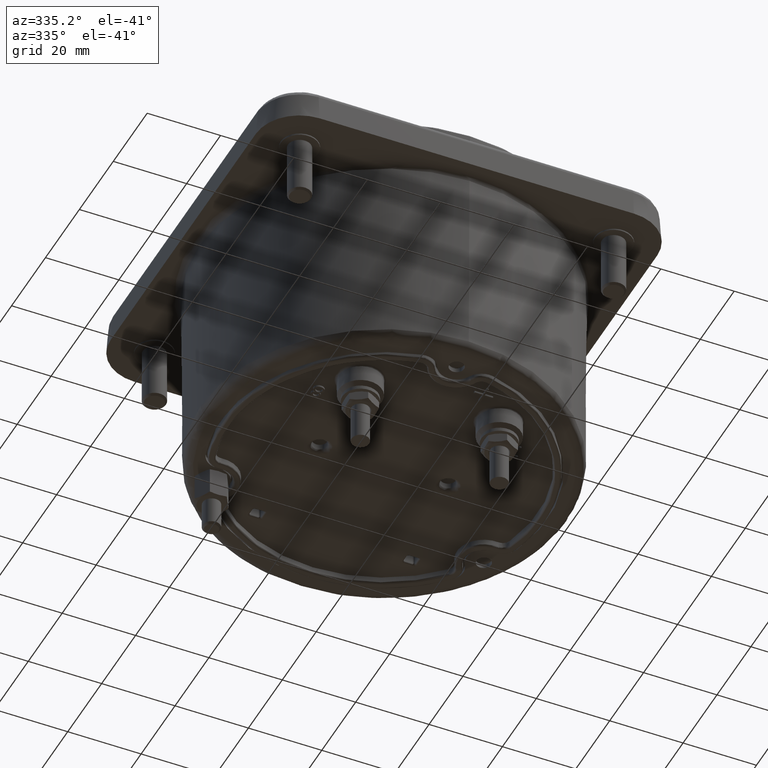
[diagram: clean part render]
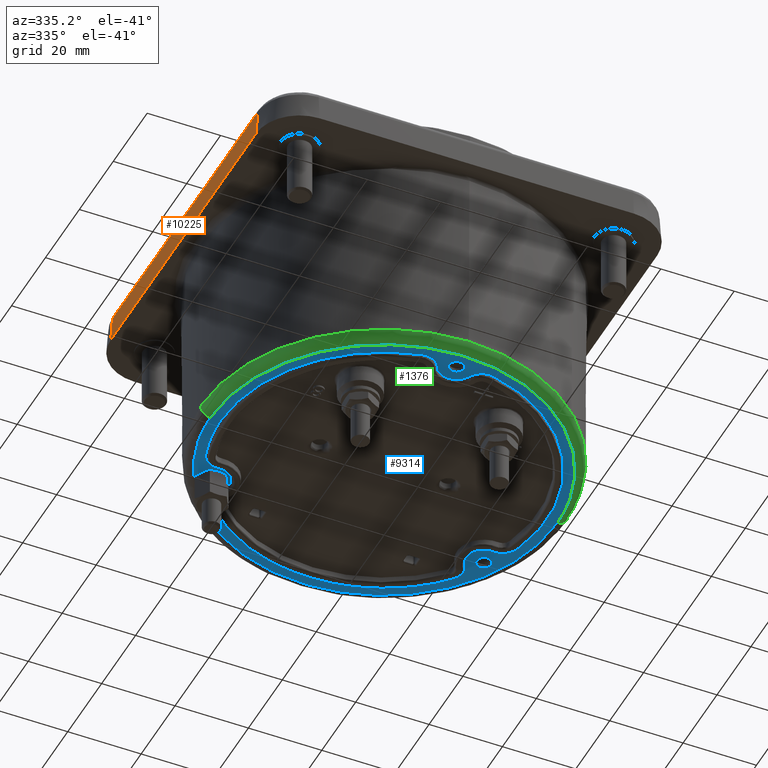
[diagram: same view with three faces highlighted in distinct colors, each labeled with its STEP entity id]
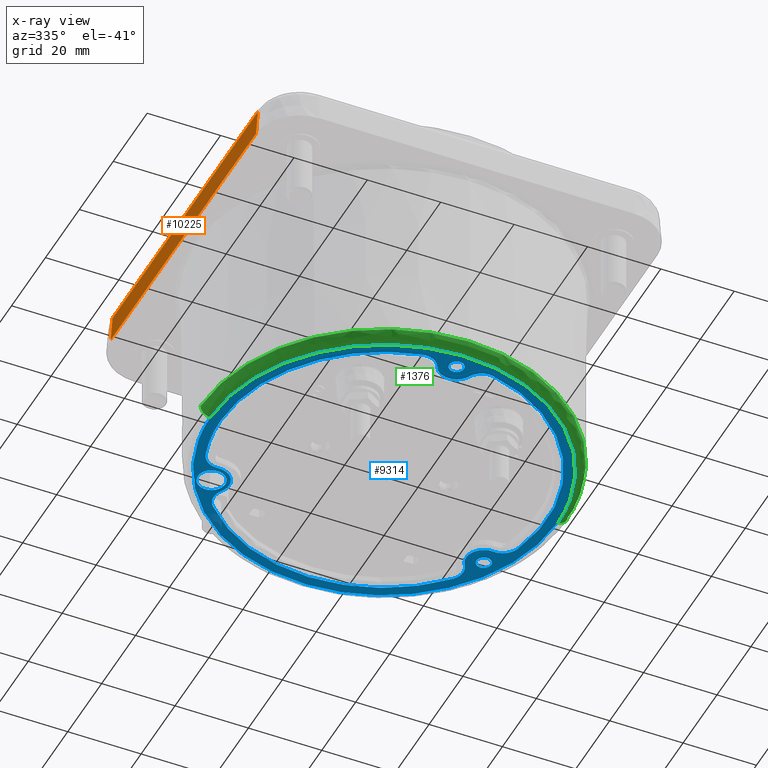
[diagram: x-ray of the same camera — body ghosted, the three highlighted faces saturated]
A machine part, auxiliary view with three faces highlighted in distinct colors.
The next image is the same camera in x-ray (body ghosted, the three faces saturated) — at least one of them is partly hidden behind the body in this view.
Their STEP definitions:

[orange] entity #10225 — the highlighted planar face has unit normal (-0.9976, -0, 0.0698).
#1571 = CARTESIAN_POINT ( 'NONE',  ( -2.133475103427696862, 1.687007872627659388, 2.357098934979472649 ) ) ;
#1637 = CARTESIAN_POINT ( 'NONE',  ( -2.153543308184228344, 1.687007872614602277, 2.070110236220472189 ) ) ;
#1913 = CARTESIAN_POINT ( 'NONE',  ( -2.133475100921637946, -2.153543308487763763, 2.357098934919358513 ) ) ;
#3678 = LINE ( 'NONE', #1913, #15981 ) ;
#4688 = DIRECTION ( 'NONE',  ( 0.06975647374412533019, 0.000000000000000000, 0.9975640502598244197 ) ) ;
#4998 = DIRECTION ( 'NONE',  ( 0.000000000000000000, 1.000000000000000000, 0.000000000000000000 ) ) ;
#5026 = DIRECTION ( 'NONE',  ( 0.06975647366454637566, 4.538471703306039120E-11, 0.9975640502653888575 ) ) ;
#5438 = CARTESIAN_POINT ( 'NONE',  ( -2.153543307086614345, 1.687007872766370209, 2.070110236220472189 ) ) ;
#5782 = AXIS2_PLACEMENT_3D ( 'NONE', #19234, #14646, #4688 ) ;
#6797 = LINE ( 'NONE', #15428, #8531 ) ;
#6916 = EDGE_CURVE ( 'NONE', #7320, #16397, #16934, .T. ) ;
#7277 = DIRECTION ( 'NONE',  ( -6.474599080580000220E-10, 1.000000000000000000, 4.527480723173429813E-11 ) ) ;
#7320 = VERTEX_POINT ( 'NONE', #5438 ) ;
#8531 = VECTOR ( 'NONE', #11742, 39.37007874015748854 ) ;
#8926 = EDGE_CURVE ( 'NONE', #17065, #11542, #6797, .T. ) ;
#9288 = PLANE ( 'NONE',  #5782 ) ;
#9857 = EDGE_LOOP ( 'NONE', ( #19350, #12769, #14043, #12941 ) ) ;
#10225 = ADVANCED_FACE ( 'NONE', ( #17903 ), #9288, .T. ) ;
#11542 = VERTEX_POINT ( 'NONE', #15567 ) ;
#11742 = DIRECTION ( 'NONE',  ( 0.06975647374412530244, 0.000000000000000000, 0.9975640502598241977 ) ) ;
#12769 = ORIENTED_EDGE ( 'NONE', *, *, #20242, .F. ) ;
#12853 = VECTOR ( 'NONE', #5026, 39.37007874015748854 ) ;
#12941 = ORIENTED_EDGE ( 'NONE', *, *, #16252, .T. ) ;
#13434 = LINE ( 'NONE', #19989, #16131 ) ;
#14043 = ORIENTED_EDGE ( 'NONE', *, *, #8926, .T. ) ;
#14646 = DIRECTION ( 'NONE',  ( -0.9975640502598243087, -6.490409391651221763E-10, 0.06975647374412533019 ) ) ;
#15428 = CARTESIAN_POINT ( 'NONE',  ( -2.153543305987531298, -1.687007875416897562, 2.070110236241590407 ) ) ;
#15567 = CARTESIAN_POINT ( 'NONE',  ( -2.133475101229425075, -1.687007875410368118, 2.357098934940882184 ) ) ;
#15981 = VECTOR ( 'NONE', #7277, 39.37007874015748143 ) ;
#16131 = VECTOR ( 'NONE', #4998, 39.37007874015748143 ) ;
#16252 = EDGE_CURVE ( 'NONE', #11542, #16397, #3678, .T. ) ;
#16397 = VERTEX_POINT ( 'NONE', #1571 ) ;
#16934 = LINE ( 'NONE', #1637, #12853 ) ;
#17065 = VERTEX_POINT ( 'NONE', #20672 ) ;
#17903 = FACE_OUTER_BOUND ( 'NONE', #9857, .T. ) ;
#19234 = CARTESIAN_POINT ( 'NONE',  ( -2.153543305685468479, -2.153543308487763763, 2.070110236220472189 ) ) ;
#19350 = ORIENTED_EDGE ( 'NONE', *, *, #6916, .F. ) ;
#19989 = CARTESIAN_POINT ( 'NONE',  ( -2.153543305989007894, -3.543307086614173151, 2.070110236220472189 ) ) ;
#20242 = EDGE_CURVE ( 'NONE', #17065, #7320, #13434, .T. ) ;
#20672 = CARTESIAN_POINT ( 'NONE',  ( -2.153543305989007894, -1.687007875265127854, 2.070110236220472189 ) ) ;

[blue] entity #9314 — the highlighted planar face has unit normal (0, 0, -1).
#15 = CARTESIAN_POINT ( 'NONE',  ( -1.305539611769651609, 0.9509596348511083486, -0.1550551181102393650 ) ) ;
#112 = VERTEX_POINT ( 'NONE', #9804 ) ;
#173 = AXIS2_PLACEMENT_3D ( 'NONE', #21197, #14639, #14738 ) ;
#193 = CIRCLE ( 'NONE', #5817, 0.07874015748031502893 ) ;
#525 = EDGE_CURVE ( 'NONE', #5381, #15332, #13678, .T. ) ;
#599 = CARTESIAN_POINT ( 'NONE',  ( 1.460991674733208789, 0.8435039379584450270, -0.1550551181102393650 ) ) ;
#726 = VERTEX_POINT ( 'NONE', #18587 ) ;
#727 = EDGE_CURVE ( 'NONE', #8705, #6895, #5017, .T. ) ;
#807 = EDGE_CURVE ( 'NONE', #1234, #15644, #18268, .T. ) ;
#843 = FACE_BOUND ( 'NONE', #1360, .T. ) ;
#884 = ORIENTED_EDGE ( 'NONE', *, *, #5634, .T. ) ;
#962 = AXIS2_PLACEMENT_3D ( 'NONE', #17773, #7318, #18675 ) ;
#966 = ORIENTED_EDGE ( 'NONE', *, *, #13560, .F. ) ;
#979 = DIRECTION ( 'NONE',  ( 0.000000000000000000, 0.000000000000000000, 1.000000000000000000 ) ) ;
#1010 = EDGE_CURVE ( 'NONE', #726, #19868, #2912, .T. ) ;
#1068 = CARTESIAN_POINT ( 'NONE',  ( -1.460991675830823011, 0.9899121414463110114, -0.1550551181097619968 ) ) ;
#1087 = DIRECTION ( 'NONE',  ( -0.000000000000000000, -0.000000000000000000, 1.000000000000000000 ) ) ;
#1103 = CIRCLE ( 'NONE', #3203, 1.751968503937007871 ) ;
#1213 = EDGE_LOOP ( 'NONE', ( #13843, #966 ) ) ;
#1234 = VERTEX_POINT ( 'NONE', #20446 ) ;
#1322 = ORIENTED_EDGE ( 'NONE', *, *, #15828, .T. ) ;
#1360 = EDGE_LOOP ( 'NONE', ( #16661, #8137, #12038, #9771, #16013, #9324, #20114, #5182, #884, #21263, #8694, #12460, #2274, #4721, #8532 ) ) ;
#1362 = CARTESIAN_POINT ( 'NONE',  ( 4.755600987370747928E-15, 2.237929876409763545E-15, -0.1550551181102393650 ) ) ;
#1468 = CIRCLE ( 'NONE', #10576, 1.751968503937007871 ) ;
#1671 = EDGE_CURVE ( 'NONE', #20693, #15475, #13727, .T. ) ;
#1677 = CIRCLE ( 'NONE', #11477, 0.1464082053889998736 ) ;
#1904 = CIRCLE ( 'NONE', #14164, 0.1889763779527558474 ) ;
#1982 = VERTEX_POINT ( 'NONE', #17822 ) ;
#2006 = DIRECTION ( 'NONE',  ( -1.000000000000000000, 0.000000000000000000, 0.000000000000000000 ) ) ;
#2200 = DIRECTION ( 'NONE',  ( 0.000000000000000000, 0.000000000000000000, 1.000000000000000000 ) ) ;
#2221 = DIRECTION ( 'NONE',  ( 0.000000000000000000, 0.000000000000000000, -1.000000000000000000 ) ) ;
#2274 = ORIENTED_EDGE ( 'NONE', *, *, #5528, .T. ) ;
#2276 = AXIS2_PLACEMENT_3D ( 'NONE', #19621, #2768, #21148 ) ;
#2547 = AXIS2_PLACEMENT_3D ( 'NONE', #1362, #21379, #16452 ) ;
#2768 = DIRECTION ( 'NONE',  ( -0.000000000000000000, -0.000000000000000000, 1.000000000000000000 ) ) ;
#2829 = CARTESIAN_POINT ( 'NONE',  ( 1.861874424311921183, 3.723748854680767995, -0.1550551181102393650 ) ) ;
#2912 = CIRCLE ( 'NONE', #11319, 0.1889763779527558474 ) ;
#3024 = CARTESIAN_POINT ( 'NONE',  ( 1.382251517252893747, 0.8435039379584450270, -0.1550551181102393650 ) ) ;
#3203 = AXIS2_PLACEMENT_3D ( 'NONE', #4438, #10892, #4215 ) ;
#3213 = DIRECTION ( 'NONE',  ( -0.000000000000000000, -0.000000000000000000, 1.000000000000000000 ) ) ;
#3281 = CIRCLE ( 'NONE', #20762, 0.1889763779527559029 ) ;
#3717 = EDGE_LOOP ( 'NONE', ( #10837, #17211 ) ) ;
#3743 = CIRCLE ( 'NONE', #14918, 0.07874015748031495954 ) ;
#3938 = FACE_BOUND ( 'NONE', #17574, .T. ) ;
#3970 = VERTEX_POINT ( 'NONE', #9087 ) ;
#4019 = CARTESIAN_POINT ( 'NONE',  ( -0.1707853958698066776, -1.606110286864942838, -0.1550551181102393650 ) ) ;
#4215 = DIRECTION ( 'NONE',  ( -1.000000000000000000, -8.881784197001252323E-16, 0.000000000000000000 ) ) ;
#4255 = PLANE ( 'NONE',  #20416 ) ;
#4365 = CARTESIAN_POINT ( 'NONE',  ( -1.460991675830823011, 0.6970957306683112087, -0.1550551181097619968 ) ) ;
#4438 = CARTESIAN_POINT ( 'NONE',  ( 4.755600987370747928E-15, 2.237929876409763545E-15, -0.1550551181102393650 ) ) ;
#4444 = DIRECTION ( 'NONE',  ( -1.000000000000000000, 0.000000000000000000, 0.000000000000000000 ) ) ;
#4522 = ORIENTED_EDGE ( 'NONE', *, *, #16445, .T. ) ;
#4625 = DIRECTION ( 'NONE',  ( 0.000000000000000000, 1.000000000000000000, 0.000000000000000000 ) ) ;
#4721 = ORIENTED_EDGE ( 'NONE', *, *, #1671, .T. ) ;
#4736 = ORIENTED_EDGE ( 'NONE', *, *, #19992, .T. ) ;
#5017 =( BOUNDED_CURVE ( )  B_SPLINE_CURVE ( 3, ( #18812, #8883, #8766, #13583 ),
 .UNSPECIFIED., .F., .F. ) 
 B_SPLINE_CURVE_WITH_KNOTS ( ( 4, 4 ),
 ( 0.000000000000000000, 0.5000000000000000000 ),
 .UNSPECIFIED. ) 
 CURVE ( )  GEOMETRIC_REPRESENTATION_ITEM ( )  RATIONAL_B_SPLINE_CURVE ( ( 1.000000000000000000, 0.3333333333333339810, 0.3333333333333339810, 1.000000000000000000 ) ) 
 REPRESENTATION_ITEM ( '' )  );
#5064 = DIRECTION ( 'NONE',  ( -1.000000000000000000, 0.000000000000000000, 0.000000000000000000 ) ) ;
#5182 = ORIENTED_EDGE ( 'NONE', *, *, #807, .T. ) ;
#5259 = CARTESIAN_POINT ( 'NONE',  ( 1.539731832213523832, 0.8435039379584450270, -0.1550551181102393650 ) ) ;
#5381 = VERTEX_POINT ( 'NONE', #5259 ) ;
#5457 = FACE_BOUND ( 'NONE', #3717, .T. ) ;
#5528 = EDGE_CURVE ( 'NONE', #11664, #20693, #13367, .T. ) ;
#5634 = EDGE_CURVE ( 'NONE', #15644, #20844, #21593, .T. ) ;
#5817 = AXIS2_PLACEMENT_3D ( 'NONE', #7948, #14710, #4444 ) ;
#5853 = CARTESIAN_POINT ( 'NONE',  ( -1.672009979378200617, 0.5232363401437007955, -0.1550551181102393650 ) ) ;
#5860 = EDGE_CURVE ( 'NONE', #17819, #3970, #8673, .T. ) ;
#6073 = DIRECTION ( 'NONE',  ( 0.000000000000000000, 0.000000000000000000, 1.000000000000000000 ) ) ;
#6148 = CARTESIAN_POINT ( 'NONE',  ( -1.460991675830823011, 0.8435039360573111100, -0.1550551181097619968 ) ) ;
#6320 = DIRECTION ( 'NONE',  ( -0.000000000000000000, -0.000000000000000000, 1.000000000000000000 ) ) ;
#6361 = AXIS2_PLACEMENT_3D ( 'NONE', #6148, #14684, #4625 ) ;
#6509 = CIRCLE ( 'NONE', #173, 0.1889763779527558474 ) ;
#6701 = CIRCLE ( 'NONE', #6361, 0.1464082053889998736 ) ;
#6710 = AXIS2_PLACEMENT_3D ( 'NONE', #7339, #2200, #19160 ) ;
#6895 = VERTEX_POINT ( 'NONE', #15190 ) ;
#7209 = EDGE_CURVE ( 'NONE', #20844, #1982, #1468, .T. ) ;
#7318 = DIRECTION ( 'NONE',  ( 0.000000000000000000, 0.000000000000000000, 1.000000000000000000 ) ) ;
#7339 = CARTESIAN_POINT ( 'NONE',  ( 0.3415707948219350309, -1.525212699269673289, -0.1550551181102393650 ) ) ;
#7501 = CARTESIAN_POINT ( 'NONE',  ( 1.672009978697338584, 0.5232363423194291707, -0.1550551181102393650 ) ) ;
#7920 = DIRECTION ( 'NONE',  ( 1.000000000000000000, 0.000000000000000000, 0.000000000000000000 ) ) ;
#7948 = CARTESIAN_POINT ( 'NONE',  ( 1.460991674733208789, 0.8435039379584450270, -0.1550551181102393650 ) ) ;
#8050 = VERTEX_POINT ( 'NONE', #1068 ) ;
#8101 = DIRECTION ( 'NONE',  ( 0.000000000000000000, 0.000000000000000000, -1.000000000000000000 ) ) ;
#8136 = DIRECTION ( 'NONE',  ( 0.000000000000000000, 0.000000000000000000, 1.000000000000000000 ) ) ;
#8137 = ORIENTED_EDGE ( 'NONE', *, *, #11016, .T. ) ;
#8197 = DIRECTION ( 'NONE',  ( -1.000000000000000000, 0.000000000000000000, 0.000000000000000000 ) ) ;
#8532 = ORIENTED_EDGE ( 'NONE', *, *, #11412, .T. ) ;
#8558 = DIRECTION ( 'NONE',  ( 0.000000000000000000, 0.000000000000000000, 1.000000000000000000 ) ) ;
#8565 = VERTEX_POINT ( 'NONE', #15 ) ;
#8673 = CIRCLE ( 'NONE', #962, 0.1889763779527558474 ) ;
#8694 = ORIENTED_EDGE ( 'NONE', *, *, #8985, .T. ) ;
#8705 = VERTEX_POINT ( 'NONE', #19186 ) ;
#8766 = CARTESIAN_POINT ( 'NONE',  ( 1.861874429157462041, -3.723748852257978026, -0.1550551181102393650 ) ) ;
#8864 = DIRECTION ( 'NONE',  ( -1.000000000000000000, 0.000000000000000000, 0.000000000000000000 ) ) ;
#8883 = CARTESIAN_POINT ( 'NONE',  ( -1.861874424311905196, -3.723748854680752007, -0.1550551181102393650 ) ) ;
#8906 = EDGE_CURVE ( 'NONE', #11318, #11664, #9933, .T. ) ;
#8985 = EDGE_CURVE ( 'NONE', #1982, #11318, #3281, .T. ) ;
#9001 = DIRECTION ( 'NONE',  ( 1.000000000000000000, 0.000000000000000000, 0.000000000000000000 ) ) ;
#9087 = CARTESIAN_POINT ( 'NONE',  ( 1.339063924283964591, 1.058415335141480451, -0.1550551181102393650 ) ) ;
#9310 = DIRECTION ( 'NONE',  ( 1.000000000000000000, 0.000000000000000000, 0.000000000000000000 ) ) ;
#9314 = ADVANCED_FACE ( 'NONE', ( #3938, #843, #15630, #5457, #15399 ), #4255, .T. ) ;
#9324 = ORIENTED_EDGE ( 'NONE', *, *, #15180, .T. ) ;
#9771 = ORIENTED_EDGE ( 'NONE', *, *, #12074, .T. ) ;
#9804 = CARTESIAN_POINT ( 'NONE',  ( 0.07874015857793492668, -1.687007874015748143, -0.1550551181102393650 ) ) ;
#9933 = CIRCLE ( 'NONE', #21440, 0.1889763779527559029 ) ;
#10423 = CARTESIAN_POINT ( 'NONE',  ( -0.3415707928372326840, -1.525212699714141529, -0.1550551181102393650 ) ) ;
#10460 = CARTESIAN_POINT ( 'NONE',  ( 1.305539610532208572, 0.9509596365499627391, -0.1550551181102393650 ) ) ;
#10558 = VERTEX_POINT ( 'NONE', #17665 ) ;
#10576 = AXIS2_PLACEMENT_3D ( 'NONE', #17793, #6320, #8197 ) ;
#10837 = ORIENTED_EDGE ( 'NONE', *, *, #14026, .T. ) ;
#10892 = DIRECTION ( 'NONE',  ( -0.000000000000000000, -0.000000000000000000, 1.000000000000000000 ) ) ;
#10986 = CARTESIAN_POINT ( 'NONE',  ( -1.150087547708476432, 1.058415333644909362, -0.1550551181102393650 ) ) ;
#11016 = EDGE_CURVE ( 'NONE', #19868, #17819, #6509, .T. ) ;
#11121 = AXIS2_PLACEMENT_3D ( 'NONE', #14669, #1087, #21011 ) ;
#11168 = DIRECTION ( 'NONE',  ( -1.000000000000000000, 0.000000000000000000, 0.000000000000000000 ) ) ;
#11318 = VERTEX_POINT ( 'NONE', #4019 ) ;
#11319 = AXIS2_PLACEMENT_3D ( 'NONE', #21116, #8101, #11168 ) ;
#11412 = EDGE_CURVE ( 'NONE', #15475, #726, #15239, .T. ) ;
#11477 = AXIS2_PLACEMENT_3D ( 'NONE', #13395, #11760, #20057 ) ;
#11547 = DIRECTION ( 'NONE',  ( 1.000000000000000000, 0.000000000000000000, 0.000000000000000000 ) ) ;
#11664 = VERTEX_POINT ( 'NONE', #14279 ) ;
#11760 = DIRECTION ( 'NONE',  ( -0.000000000000000000, -9.378505498960958704E-17, 1.000000000000000000 ) ) ;
#11797 = EDGE_CURVE ( 'NONE', #112, #13237, #16238, .T. ) ;
#12038 = ORIENTED_EDGE ( 'NONE', *, *, #5860, .T. ) ;
#12067 = DIRECTION ( 'NONE',  ( 0.000000000000000000, 0.000000000000000000, -1.000000000000000000 ) ) ;
#12074 = EDGE_CURVE ( 'NONE', #3970, #10558, #1904, .T. ) ;
#12160 = DIRECTION ( 'NONE',  ( 0.000000000000000000, 0.000000000000000000, -1.000000000000000000 ) ) ;
#12378 = CARTESIAN_POINT ( 'NONE',  ( 1.218533229454543296E-09, -1.872848622775937111, -0.1550551181102393650 ) ) ;
#12460 = ORIENTED_EDGE ( 'NONE', *, *, #8906, .T. ) ;
#13237 = VERTEX_POINT ( 'NONE', #17572 ) ;
#13367 = CIRCLE ( 'NONE', #6710, 0.1889763779527559306 ) ;
#13395 = CARTESIAN_POINT ( 'NONE',  ( -1.460991675830823011, 0.8435039360573111100, -0.1550551181097619968 ) ) ;
#13560 = EDGE_CURVE ( 'NONE', #6895, #8705, #14502, .T. ) ;
#13583 = CARTESIAN_POINT ( 'NONE',  ( 1.861874426734691390, 1.211388297214887600E-09, -0.1550551181102393650 ) ) ;
#13678 = CIRCLE ( 'NONE', #16459, 0.07874015748031502893 ) ;
#13727 = CIRCLE ( 'NONE', #2547, 1.751968503937007871 ) ;
#13753 = AXIS2_PLACEMENT_3D ( 'NONE', #16843, #8558, #20353 ) ;
#13843 = ORIENTED_EDGE ( 'NONE', *, *, #727, .F. ) ;
#14026 = EDGE_CURVE ( 'NONE', #15332, #5381, #193, .T. ) ;
#14164 = AXIS2_PLACEMENT_3D ( 'NONE', #19588, #979, #9310 ) ;
#14248 = DIRECTION ( 'NONE',  ( 0.000000000000000000, 0.000000000000000000, 1.000000000000000000 ) ) ;
#14279 = CARTESIAN_POINT ( 'NONE',  ( 0.1707853979597771799, -1.606110286642708829, -0.1550551181102393650 ) ) ;
#14502 =( BOUNDED_CURVE ( )  B_SPLINE_CURVE ( 3, ( #17806, #2829, #19581, #16187 ),
 .UNSPECIFIED., .F., .T. ) 
 B_SPLINE_CURVE_WITH_KNOTS ( ( 4, 4 ),
 ( 0.5000000000000000000, 1.000000000000000000 ),
 .UNSPECIFIED. ) 
 CURVE ( )  GEOMETRIC_REPRESENTATION_ITEM ( )  RATIONAL_B_SPLINE_CURVE ( ( 1.000000000000000000, 0.3333333333333327597, 0.3333333333333327597, 1.000000000000000000 ) ) 
 REPRESENTATION_ITEM ( '' )  );
#14553 = AXIS2_PLACEMENT_3D ( 'NONE', #10986, #8136, #7920 ) ;
#14639 = DIRECTION ( 'NONE',  ( 0.000000000000000000, 0.000000000000000000, -1.000000000000000000 ) ) ;
#14669 = CARTESIAN_POINT ( 'NONE',  ( 4.755600987370747928E-15, 2.237929876409763545E-15, -0.1550551181102393650 ) ) ;
#14684 = DIRECTION ( 'NONE',  ( -0.000000000000000000, -9.378505498960958704E-17, 1.000000000000000000 ) ) ;
#14710 = DIRECTION ( 'NONE',  ( -0.000000000000000000, -0.000000000000000000, 1.000000000000000000 ) ) ;
#14738 = DIRECTION ( 'NONE',  ( -1.000000000000000000, 0.000000000000000000, 0.000000000000000000 ) ) ;
#14833 = CARTESIAN_POINT ( 'NONE',  ( -1.289140953980533411, 1.186384945773261812, -0.1550551181102393650 ) ) ;
#14918 = AXIS2_PLACEMENT_3D ( 'NONE', #16759, #3213, #5064 ) ;
#15180 = EDGE_CURVE ( 'NONE', #18673, #8565, #16977, .T. ) ;
#15190 = CARTESIAN_POINT ( 'NONE',  ( 1.861874426734691390, 1.211388297214887600E-09, -0.1550551181102393650 ) ) ;
#15239 = CIRCLE ( 'NONE', #18028, 0.1889763779527558474 ) ;
#15332 = VERTEX_POINT ( 'NONE', #3024 ) ;
#15379 = VERTEX_POINT ( 'NONE', #4365 ) ;
#15399 = FACE_OUTER_BOUND ( 'NONE', #1213, .T. ) ;
#15475 = VERTEX_POINT ( 'NONE', #7501 ) ;
#15630 = FACE_BOUND ( 'NONE', #19522, .T. ) ;
#15644 = VERTEX_POINT ( 'NONE', #5853 ) ;
#15689 = CARTESIAN_POINT ( 'NONE',  ( 0.3828690269414630198, -1.709621287594468519, -0.1550551181102393650 ) ) ;
#15828 = EDGE_CURVE ( 'NONE', #13237, #112, #3743, .T. ) ;
#15928 = CARTESIAN_POINT ( 'NONE',  ( 1.272015296780452998, 0.8435039379584450270, -0.1550551181102393650 ) ) ;
#15948 = EDGE_CURVE ( 'NONE', #8565, #1234, #18053, .T. ) ;
#16013 = ORIENTED_EDGE ( 'NONE', *, *, #18890, .T. ) ;
#16033 = ORIENTED_EDGE ( 'NONE', *, *, #11797, .T. ) ;
#16187 = CARTESIAN_POINT ( 'NONE',  ( -1.861874426734680954, -1.211381829296230488E-09, -0.1550551181102393650 ) ) ;
#16238 = CIRCLE ( 'NONE', #2276, 0.07874015748031495954 ) ;
#16314 = CARTESIAN_POINT ( 'NONE',  ( -1.751968503937003208, 2.237929876409763545E-15, -0.1550551181102393650 ) ) ;
#16445 = EDGE_CURVE ( 'NONE', #8050, #15379, #1677, .T. ) ;
#16452 = DIRECTION ( 'NONE',  ( -1.000000000000000000, 8.881784197001252323E-16, 0.000000000000000000 ) ) ;
#16459 = AXIS2_PLACEMENT_3D ( 'NONE', #599, #18988, #20424 ) ;
#16661 = ORIENTED_EDGE ( 'NONE', *, *, #1010, .T. ) ;
#16759 = CARTESIAN_POINT ( 'NONE',  ( 1.097619963314055085E-09, -1.687007874015748143, -0.1550551181102393650 ) ) ;
#16843 = CARTESIAN_POINT ( 'NONE',  ( -1.491658341153133893, 0.4667973641282007757, -0.1550551181102393650 ) ) ;
#16976 = CARTESIAN_POINT ( 'NONE',  ( -1.460991675830823011, 0.8435039360573071132, -0.1550551181102393650 ) ) ;
#16977 = CIRCLE ( 'NONE', #14553, 0.1889763779527558474 ) ;
#17211 = ORIENTED_EDGE ( 'NONE', *, *, #525, .T. ) ;
#17572 = CARTESIAN_POINT ( 'NONE',  ( -0.07874015638269499240, -1.687007874015748143, -0.1550551181102393650 ) ) ;
#17574 = EDGE_LOOP ( 'NONE', ( #4522, #4736 ) ) ;
#17665 = CARTESIAN_POINT ( 'NONE',  ( 1.289140952436744092, 1.186384947450775718, -0.1550551181102393650 ) ) ;
#17713 = AXIS2_PLACEMENT_3D ( 'NONE', #16976, #2221, #2006 ) ;
#17773 = CARTESIAN_POINT ( 'NONE',  ( 1.150087546331208577, 1.058415335141480451, -0.1550551181102393650 ) ) ;
#17793 = CARTESIAN_POINT ( 'NONE',  ( 4.755600987370747928E-15, 2.237929876409763545E-15, -0.1550551181102393650 ) ) ;
#17806 = CARTESIAN_POINT ( 'NONE',  ( 1.861874426734691390, 1.211388297214887600E-09, -0.1550551181102393650 ) ) ;
#17819 = VERTEX_POINT ( 'NONE', #10460 ) ;
#17822 = CARTESIAN_POINT ( 'NONE',  ( -0.3828690247167976235, -1.709621288092679103, -0.1550551181102393650 ) ) ;
#18028 = AXIS2_PLACEMENT_3D ( 'NONE', #19864, #6073, #11547 ) ;
#18053 = CIRCLE ( 'NONE', #17713, 0.1889763779527558474 ) ;
#18268 = CIRCLE ( 'NONE', #13753, 0.1889763779527558474 ) ;
#18279 = CARTESIAN_POINT ( 'NONE',  ( 1.097619963314055085E-09, -1.687007874015748143, -0.1550551181102393650 ) ) ;
#18587 = CARTESIAN_POINT ( 'NONE',  ( 1.476325007639464504, 0.6551506520138444811, -0.1550551181102393650 ) ) ;
#18673 = VERTEX_POINT ( 'NONE', #14833 ) ;
#18675 = DIRECTION ( 'NONE',  ( 1.000000000000000000, 0.000000000000000000, 0.000000000000000000 ) ) ;
#18705 = DIRECTION ( 'NONE',  ( -1.000000000000000000, 0.000000000000000000, 0.000000000000000000 ) ) ;
#18812 = CARTESIAN_POINT ( 'NONE',  ( -1.861874426734680954, -1.211381829296230488E-09, -0.1550551181102393650 ) ) ;
#18890 = EDGE_CURVE ( 'NONE', #10558, #18673, #1103, .T. ) ;
#18988 = DIRECTION ( 'NONE',  ( -0.000000000000000000, -0.000000000000000000, 1.000000000000000000 ) ) ;
#19160 = DIRECTION ( 'NONE',  ( 1.000000000000000000, 0.000000000000000000, 0.000000000000000000 ) ) ;
#19186 = CARTESIAN_POINT ( 'NONE',  ( -1.861874426734680954, -1.211381829296230488E-09, -0.1550551181102393650 ) ) ;
#19522 = EDGE_LOOP ( 'NONE', ( #1322, #16033 ) ) ;
#19581 = CARTESIAN_POINT ( 'NONE',  ( -1.861874429157458932, 3.723748852257994013, -0.1550551181102393650 ) ) ;
#19588 = CARTESIAN_POINT ( 'NONE',  ( 1.150087546331208577, 1.058415335141480451, -0.1550551181102393650 ) ) ;
#19621 = CARTESIAN_POINT ( 'NONE',  ( 1.097619963314055085E-09, -1.687007874015748143, -0.1550551181102393650 ) ) ;
#19864 = CARTESIAN_POINT ( 'NONE',  ( 1.491658340545716444, 0.4667973660692441018, -0.1550551181102393650 ) ) ;
#19868 = VERTEX_POINT ( 'NONE', #15928 ) ;
#19992 = EDGE_CURVE ( 'NONE', #15379, #8050, #6701, .T. ) ;
#20057 = DIRECTION ( 'NONE',  ( 0.000000000000000000, 1.000000000000000000, 0.000000000000000000 ) ) ;
#20114 = ORIENTED_EDGE ( 'NONE', *, *, #15948, .T. ) ;
#20353 = DIRECTION ( 'NONE',  ( 1.000000000000000000, 0.000000000000000000, 0.000000000000000000 ) ) ;
#20416 = AXIS2_PLACEMENT_3D ( 'NONE', #12378, #12160, #8864 ) ;
#20424 = DIRECTION ( 'NONE',  ( -1.000000000000000000, 0.000000000000000000, 0.000000000000000000 ) ) ;
#20446 = CARTESIAN_POINT ( 'NONE',  ( -1.476325008491978341, 0.6551506500927539722, -0.1550551181102393650 ) ) ;
#20693 = VERTEX_POINT ( 'NONE', #15689 ) ;
#20762 = AXIS2_PLACEMENT_3D ( 'NONE', #10423, #14248, #9001 ) ;
#20844 = VERTEX_POINT ( 'NONE', #16314 ) ;
#21011 = DIRECTION ( 'NONE',  ( -1.000000000000000000, 7.993605777301127091E-15, 0.000000000000000000 ) ) ;
#21116 = CARTESIAN_POINT ( 'NONE',  ( 1.460991674733208789, 0.8435039379584450270, -0.1550551181102393650 ) ) ;
#21148 = DIRECTION ( 'NONE',  ( -1.000000000000000000, 0.000000000000000000, 0.000000000000000000 ) ) ;
#21197 = CARTESIAN_POINT ( 'NONE',  ( 1.460991674733208789, 0.8435039379584450270, -0.1550551181102393650 ) ) ;
#21263 = ORIENTED_EDGE ( 'NONE', *, *, #7209, .T. ) ;
#21379 = DIRECTION ( 'NONE',  ( -0.000000000000000000, -0.000000000000000000, 1.000000000000000000 ) ) ;
#21440 = AXIS2_PLACEMENT_3D ( 'NONE', #18279, #12067, #18705 ) ;
#21593 = CIRCLE ( 'NONE', #11121, 1.751968503937007871 ) ;

[green] entity #1376 — the highlighted face is a freeform B-spline surface patch.
#257 = DIRECTION ( 'NONE',  ( -6.506283845020279635E-10, 1.000000000000000000, 0.000000000000000000 ) ) ;
#562 = AXIS2_PLACEMENT_3D ( 'NONE', #4558, #11228, #14824 ) ;
#727 = EDGE_CURVE ( 'NONE', #8705, #6895, #5017, .T. ) ;
#997 = EDGE_CURVE ( 'NONE', #8747, #5601, #6733, .T. ) ;
#1166 = CARTESIAN_POINT ( 'NONE',  ( 1.968925491345131951, -3.937850976285074189, -0.04877558519270733944 ) ) ;
#1189 = DIRECTION ( 'NONE',  ( 1.000000000000000000, 6.506283845020279635E-10, 4.301193127181230591E-15 ) ) ;
#1276 = CARTESIAN_POINT ( 'NONE',  ( 1.924226064727868390, 1.251958569490190107E-09, -0.1550551181102389209 ) ) ;
#1309 = CARTESIAN_POINT ( 'NONE',  ( 4.780733988958603375E-15, -1.968925488800163270, -0.04877558519283117788 ) ) ;
#1376 = ADVANCED_FACE ( 'NONE', ( #13117 ), #4338, .T. ) ;
#1493 = CARTESIAN_POINT ( 'NONE',  ( 1.861874426734691612, 1.211390816355760710E-09, -0.1550551181102393650 ) ) ;
#2453 = ORIENTED_EDGE ( 'NONE', *, *, #16123, .T. ) ;
#4338 =( BOUNDED_SURFACE ( )  B_SPLINE_SURFACE ( 3, 3, ( 
 ( #1493, #17785, #21091, #6097 ),
 ( #1276, #21516, #12794, #4790 ),
 ( #7976, #11144, #19447, #21296 ),
 ( #6531, #1166, #13221, #19886 ) ),
 .UNSPECIFIED., .F., .F., .F. ) 
 B_SPLINE_SURFACE_WITH_KNOTS ( ( 4, 4 ),
 ( 4, 4 ),
 ( 0.000000000000000000, 1.000000000000000000 ),
 ( 0.000000000000000000, 1.000000000000000000 ),
 .UNSPECIFIED. ) 
 GEOMETRIC_REPRESENTATION_ITEM ( )  RATIONAL_B_SPLINE_SURFACE ( (
 ( 1.000000000000000000, 0.3333333333333318715, 0.3333333333333318715, 1.000000000000000000),
 ( 0.8064396365959375368, 0.2688132121986446799, 0.2688132121986446799, 0.8064396365959375368),
 ( 0.8064396365959375368, 0.2688132121986446799, 0.2688132121986446799, 0.8064396365959375368),
 ( 1.000000000000000000, 0.3333333333333318715, 0.3333333333333318715, 1.000000000000000000) ) ) 
 REPRESENTATION_ITEM ( '' )  SURFACE ( )  );
#4558 = CARTESIAN_POINT ( 'NONE',  ( 4.755600987370747928E-15, 2.237929876409763545E-15, -0.04877558519283117788 ) ) ;
#4597 = CARTESIAN_POINT ( 'NONE',  ( 4.755600987370747928E-15, 2.237929876409763545E-15, -0.04877558519283117788 ) ) ;
#4743 = EDGE_CURVE ( 'NONE', #8705, #8747, #17585, .T. ) ;
#4790 = CARTESIAN_POINT ( 'NONE',  ( -1.924226064727859065, -1.251945783999839941E-09, -0.1550551181102389209 ) ) ;
#5017 =( BOUNDED_CURVE ( )  B_SPLINE_CURVE ( 3, ( #18812, #8883, #8766, #13583 ),
 .UNSPECIFIED., .F., .F. ) 
 B_SPLINE_CURVE_WITH_KNOTS ( ( 4, 4 ),
 ( 0.000000000000000000, 0.5000000000000000000 ),
 .UNSPECIFIED. ) 
 CURVE ( )  GEOMETRIC_REPRESENTATION_ITEM ( )  RATIONAL_B_SPLINE_CURVE ( ( 1.000000000000000000, 0.3333333333333339810, 0.3333333333333339810, 1.000000000000000000 ) ) 
 REPRESENTATION_ITEM ( '' )  );
#5601 = VERTEX_POINT ( 'NONE', #1309 ) ;
#6095 = EDGE_CURVE ( 'NONE', #5601, #16917, #11075, .T. ) ;
#6097 = CARTESIAN_POINT ( 'NONE',  ( -1.861874426734682064, -1.211378300126433816E-09, -0.1550551181102393650 ) ) ;
#6191 = CIRCLE ( 'NONE', #17358, 0.1070538624803149680 ) ;
#6531 = CARTESIAN_POINT ( 'NONE',  ( 1.968925488783053401, 1.281041289025486848E-09, -0.04877558519270733944 ) ) ;
#6733 = CIRCLE ( 'NONE', #18962, 1.968925488800165491 ) ;
#6842 = CARTESIAN_POINT ( 'NONE',  ( -1.861874426734681398, -1.211386112482151813E-09, -0.04800125562992441086 ) ) ;
#6895 = VERTEX_POINT ( 'NONE', #15190 ) ;
#7976 = CARTESIAN_POINT ( 'NONE',  ( 1.968474494157848476, 1.280747859065839631E-09, -0.1111255921235829169 ) ) ;
#8705 = VERTEX_POINT ( 'NONE', #19186 ) ;
#8747 = VERTEX_POINT ( 'NONE', #13953 ) ;
#8766 = CARTESIAN_POINT ( 'NONE',  ( 1.861874429157462041, -3.723748852257978026, -0.1550551181102393650 ) ) ;
#8883 = CARTESIAN_POINT ( 'NONE',  ( -1.861874424311905196, -3.723748854680752007, -0.1550551181102393650 ) ) ;
#9445 = DIRECTION ( 'NONE',  ( 6.506285069667078454E-10, -1.000000000000000000, 0.000000000000000000 ) ) ;
#10089 = ORIENTED_EDGE ( 'NONE', *, *, #997, .F. ) ;
#10271 = AXIS2_PLACEMENT_3D ( 'NONE', #6842, #257, #20196 ) ;
#11075 = CIRCLE ( 'NONE', #562, 1.968925488800165491 ) ;
#11144 = CARTESIAN_POINT ( 'NONE',  ( 1.968474496719339939, -3.936948987034957881, -0.1111255921235829169 ) ) ;
#11214 = ORIENTED_EDGE ( 'NONE', *, *, #6095, .F. ) ;
#11228 = DIRECTION ( 'NONE',  ( 0.000000000000000000, 0.000000000000000000, 1.000000000000000000 ) ) ;
#12794 = CARTESIAN_POINT ( 'NONE',  ( -1.924226062223962863, -3.848452130707689989, -0.1550551181102389209 ) ) ;
#13117 = FACE_OUTER_BOUND ( 'NONE', #15793, .T. ) ;
#13221 = CARTESIAN_POINT ( 'NONE',  ( -1.968925486220982846, -3.937850978847143413, -0.04877558519270733944 ) ) ;
#13583 = CARTESIAN_POINT ( 'NONE',  ( 1.861874426734691390, 1.211388297214887600E-09, -0.1550551181102393650 ) ) ;
#13953 = CARTESIAN_POINT ( 'NONE',  ( -1.968925488791601897, -1.281036572047472376E-09, -0.04877558519283541061 ) ) ;
#14453 = DIRECTION ( 'NONE',  ( 0.000000000000000000, 0.000000000000000000, 1.000000000000000000 ) ) ;
#14824 = DIRECTION ( 'NONE',  ( 1.000000000000000000, 6.506283845020279635E-10, 4.301193127181230591E-15 ) ) ;
#15190 = CARTESIAN_POINT ( 'NONE',  ( 1.861874426734691390, 1.211388297214887600E-09, -0.1550551181102393650 ) ) ;
#15793 = EDGE_LOOP ( 'NONE', ( #17271, #2453, #11214, #10089, #16717 ) ) ;
#16100 = DIRECTION ( 'NONE',  ( 1.000000000000000000, 6.506285069667056740E-10, 0.000000000000000000 ) ) ;
#16123 = EDGE_CURVE ( 'NONE', #6895, #16917, #6191, .T. ) ;
#16717 = ORIENTED_EDGE ( 'NONE', *, *, #4743, .F. ) ;
#16917 = VERTEX_POINT ( 'NONE', #18574 ) ;
#17271 = ORIENTED_EDGE ( 'NONE', *, *, #727, .T. ) ;
#17358 = AXIS2_PLACEMENT_3D ( 'NONE', #21031, #9445, #16100 ) ;
#17585 = CIRCLE ( 'NONE', #10271, 0.1070538624803149680 ) ;
#17785 = CARTESIAN_POINT ( 'NONE',  ( 1.861874429157468924, -3.723748852257999342, -0.1550551181102393650 ) ) ;
#18574 = CARTESIAN_POINT ( 'NONE',  ( 1.968925488791611444, 1.281041289031055014E-09, -0.04877558519282694516 ) ) ;
#18812 = CARTESIAN_POINT ( 'NONE',  ( -1.861874426734680954, -1.211381829296230488E-09, -0.1550551181102393650 ) ) ;
#18962 = AXIS2_PLACEMENT_3D ( 'NONE', #4597, #14453, #1189 ) ;
#19186 = CARTESIAN_POINT ( 'NONE',  ( -1.861874426734680954, -1.211381829296230488E-09, -0.1550551181102393650 ) ) ;
#19447 = CARTESIAN_POINT ( 'NONE',  ( -1.968474491596364784, -3.936948989596439574, -0.1111255921235829169 ) ) ;
#19886 = CARTESIAN_POINT ( 'NONE',  ( -1.968925488783043853, -1.281028310503918212E-09, -0.04877558519270733944 ) ) ;
#20196 = DIRECTION ( 'NONE',  ( -1.000000000000000000, -6.506283845020272398E-10, 0.000000000000000000 ) ) ;
#21031 = CARTESIAN_POINT ( 'NONE',  ( 1.861874426734690946, 1.211390816355760297E-09, -0.04800125562992441086 ) ) ;
#21091 = CARTESIAN_POINT ( 'NONE',  ( -1.861874424311920961, -3.723748854680768883, -0.1550551181102393650 ) ) ;
#21296 = CARTESIAN_POINT ( 'NONE',  ( -1.968474494157839372, -1.280734882491858647E-09, -0.1111255921235829169 ) ) ;
#21516 = CARTESIAN_POINT ( 'NONE',  ( 1.924226067231781245, -3.848452128203785794, -0.1550551181102389209 ) ) ;